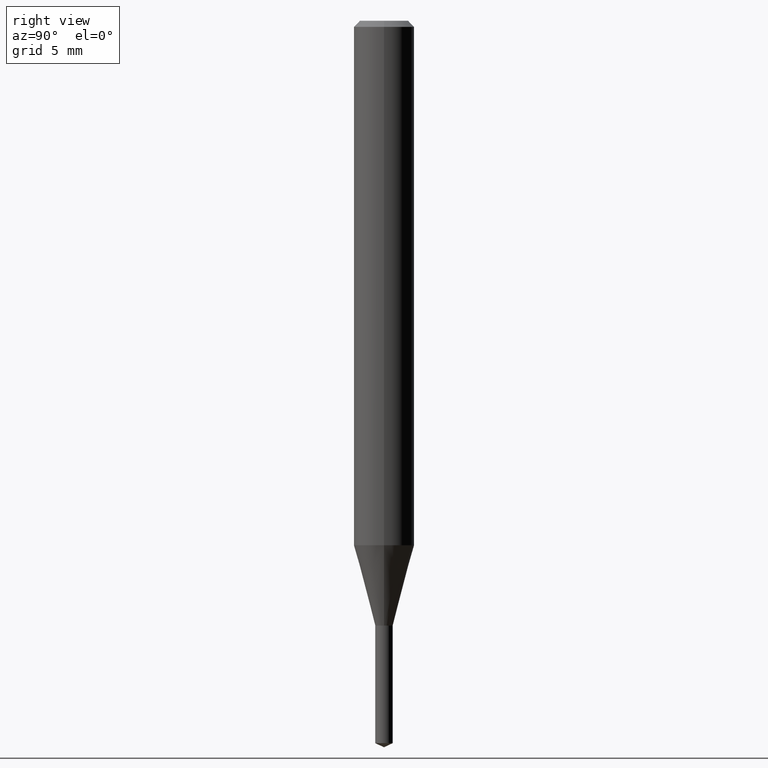
[diagram: clean part render]
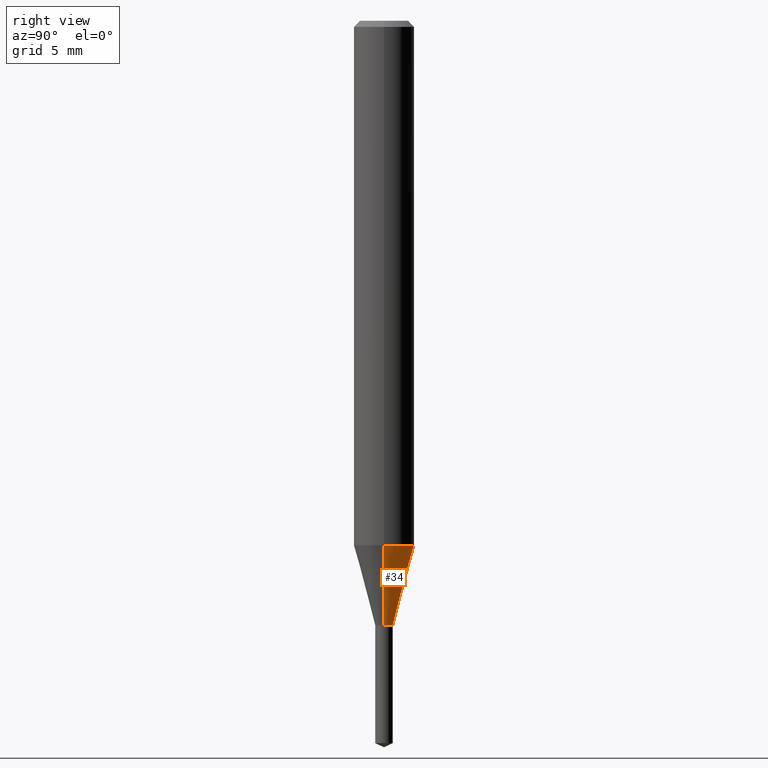
[diagram: same view with one face highlighted and labeled with its STEP entity id]
A machine part, right view. The second image highlights one B-rep face of the part: STEP entity #34.
In plain terms, the highlighted conical surface has half-angle 15 deg.
Its self-contained STEP definition (entity closure, byte-faithful):
#4 = VECTOR ( 'NONE', #106, 39.37007874015748854 ) ;
#23 = DIRECTION ( 'NONE',  ( -2.445468806185136597E-29, 3.491481338843145583E-15, 1.000000000000000000 ) ) ;
#24 = CARTESIAN_POINT ( 'NONE',  ( -0.01800000000000000558, -4.232962499778271317E-15, -1.249000000000000332 ) ) ;
#26 = ORIENTED_EDGE ( 'NONE', *, *, #67, .T. ) ;
#29 = DIRECTION ( 'NONE',  ( -2.445468806185136597E-29, 3.491481338843145583E-15, 1.000000000000000000 ) ) ;
#32 = ORIENTED_EDGE ( 'NONE', *, *, #316, .T. ) ;
#33 = CARTESIAN_POINT ( 'NONE',  ( 0.01800000000000000558, -4.486553520413442454E-15, -1.249000000000000332 ) ) ;
#34 = ADVANCED_FACE ( 'NONE', ( #105 ), #460, .T. ) ;
#35 = CARTESIAN_POINT ( 'NONE',  ( -0.01800000000000000558, -3.971974269699745884E-15, -1.249000000000000332 ) ) ;
#47 = ORIENTED_EDGE ( 'NONE', *, *, #142, .F. ) ;
#67 = EDGE_CURVE ( 'NONE', #254, #382, #461, .T. ) ;
#74 = VECTOR ( 'NONE', #330, 39.37007874015748854 ) ;
#105 = FACE_OUTER_BOUND ( 'NONE', #308, .T. ) ;
#106 = DIRECTION ( 'NONE',  ( -0.2588190451025281225, 5.211531920934590485E-15, 0.9659258262890662028 ) ) ;
#129 = AXIS2_PLACEMENT_3D ( 'NONE', #140, #23, #470 ) ;
#140 = CARTESIAN_POINT ( 'NONE',  ( 3.054390538925236264E-29, -4.360860192215089464E-15, -1.249000000000000332 ) ) ;
#142 = EDGE_CURVE ( 'NONE', #333, #404, #440, .T. ) ;
#176 = DIRECTION ( 'NONE',  ( 1.000000000000000000, -6.982962677686264344E-15, 0.000000000000000000 ) ) ;
#240 = AXIS2_PLACEMENT_3D ( 'NONE', #388, #464, #176 ) ;
#254 = VERTEX_POINT ( 'NONE', #480 ) ;
#259 = EDGE_CURVE ( 'NONE', #254, #333, #336, .T. ) ;
#292 = ORIENTED_EDGE ( 'NONE', *, *, #259, .F. ) ;
#296 = CARTESIAN_POINT ( 'NONE',  ( 3.054390538925236264E-29, -4.360860192215089464E-15, -1.249000000000000332 ) ) ;
#303 = CARTESIAN_POINT ( 'NONE',  ( -0.06250000000000012490, -3.336918816479307875E-15, -1.082923739063189839 ) ) ;
#308 = EDGE_LOOP ( 'NONE', ( #26, #32, #47, #292 ) ) ;
#316 = EDGE_CURVE ( 'NONE', #382, #404, #367, .T. ) ;
#330 = DIRECTION ( 'NONE',  ( 0.2588190451025281225, 1.565188264969568128E-15, 0.9659258262890662028 ) ) ;
#333 = VERTEX_POINT ( 'NONE', #400 ) ;
#336 = LINE ( 'NONE', #33, #74 ) ;
#367 = LINE ( 'NONE', #24, #4 ) ;
#382 = VERTEX_POINT ( 'NONE', #35 ) ;
#388 = CARTESIAN_POINT ( 'NONE',  ( 2.648256223356403194E-29, -3.781008026329371675E-15, -1.082923739063189839 ) ) ;
#393 = DIRECTION ( 'NONE',  ( 1.000000000000000000, -6.982962677686250144E-15, 0.000000000000000000 ) ) ;
#397 = AXIS2_PLACEMENT_3D ( 'NONE', #296, #29, #393 ) ;
#400 = CARTESIAN_POINT ( 'NONE',  ( 0.06250000000000012490, -4.217443193684763344E-15, -1.082923739063189839 ) ) ;
#404 = VERTEX_POINT ( 'NONE', #303 ) ;
#440 = CIRCLE ( 'NONE', #240, 0.06250000000000012490 ) ;
#460 = CONICAL_SURFACE ( 'NONE', #397, 0.01800000000000000558, 0.2617993877991570684 ) ;
#461 = CIRCLE ( 'NONE', #129, 0.01800000000000000558 ) ;
#464 = DIRECTION ( 'NONE',  ( -2.445468806185136597E-29, 3.491481338843145583E-15, 1.000000000000000000 ) ) ;
#470 = DIRECTION ( 'NONE',  ( 1.000000000000000000, -6.982962677686250144E-15, 0.000000000000000000 ) ) ;
#480 = CARTESIAN_POINT ( 'NONE',  ( 0.01800000000000000558, -4.486553520413442454E-15, -1.249000000000000332 ) ) ;